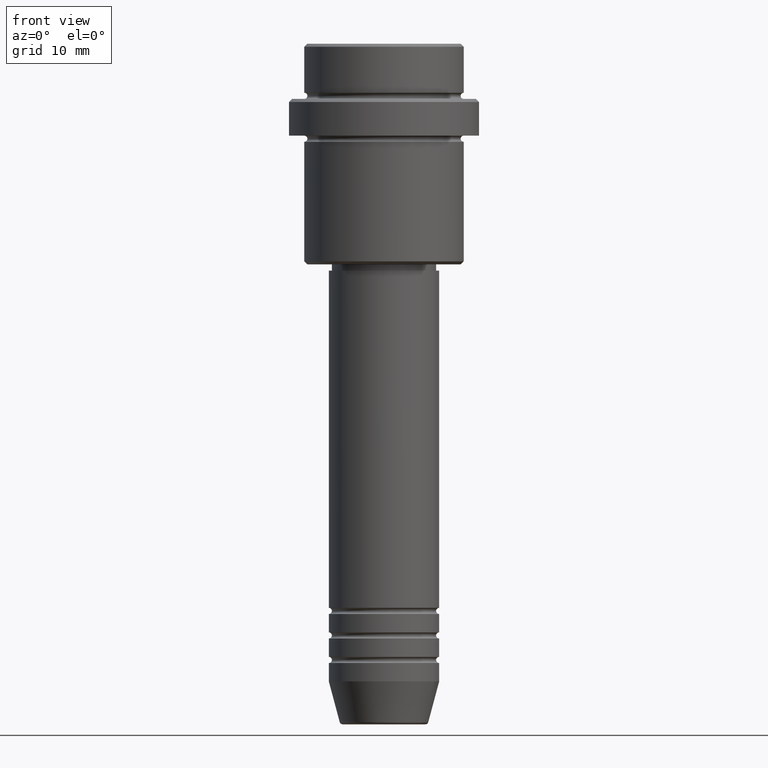
[diagram: clean part render]
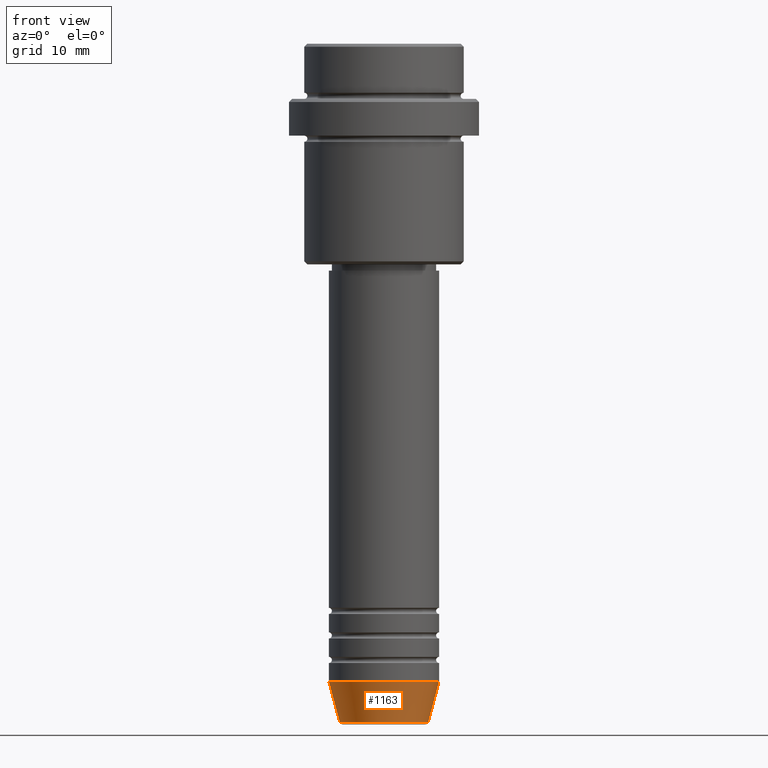
[diagram: same view with one face highlighted and labeled with its STEP entity id]
A machine part, front view. The second image highlights one B-rep face of the part: STEP entity #1163.
In plain terms, the highlighted conical surface has half-angle 15 deg.
Its self-contained STEP definition (entity closure, byte-faithful):
#52 = DIRECTION ( 'NONE',  ( 0.2588190451025213501, 0.000000000000000000, 0.9659258262890680902 ) ) ;
#76 = EDGE_CURVE ( 'NONE', #1002, #1024, #104, .T. ) ;
#78 = CARTESIAN_POINT ( 'NONE',  ( -9.000000000000000000, 1.102182119232617714E-15, -104.0000000000000000 ) ) ;
#104 = CIRCLE ( 'NONE', #1368, 7.223655072137193045 ) ;
#130 = FACE_OUTER_BOUND ( 'NONE', #228, .T. ) ;
#142 = DIRECTION ( 'NONE',  ( 1.000000000000000000, 0.000000000000000000, 0.000000000000000000 ) ) ;
#228 = EDGE_LOOP ( 'NONE', ( #1334, #1161, #1206, #266 ) ) ;
#242 = DIRECTION ( 'NONE',  ( -0.000000000000000000, -0.000000000000000000, 1.000000000000000000 ) ) ;
#266 = ORIENTED_EDGE ( 'NONE', *, *, #754, .F. ) ;
#271 = CIRCLE ( 'NONE', #838, 9.000000000000000000 ) ;
#290 = VERTEX_POINT ( 'NONE', #1107 ) ;
#322 = CARTESIAN_POINT ( 'NONE',  ( -7.223655072137193045, 9.934123627281767082E-16, -110.6294095225512422 ) ) ;
#373 = EDGE_CURVE ( 'NONE', #1002, #550, #835, .T. ) ;
#385 = DIRECTION ( 'NONE',  ( -0.000000000000000000, -0.000000000000000000, 1.000000000000000000 ) ) ;
#391 = CARTESIAN_POINT ( 'NONE',  ( -9.000000000000000000, 1.102182119232617714E-15, -104.0000000000000000 ) ) ;
#405 = CONICAL_SURFACE ( 'NONE', #447, 9.000000000000000000, 0.2617993877991500740 ) ;
#447 = AXIS2_PLACEMENT_3D ( 'NONE', #985, #680, #142 ) ;
#550 = VERTEX_POINT ( 'NONE', #78 ) ;
#574 = CARTESIAN_POINT ( 'NONE',  ( 0.000000000000000000, 0.000000000000000000, -104.0000000000000000 ) ) ;
#585 = DIRECTION ( 'NONE',  ( 1.000000000000000000, 0.000000000000000000, 0.000000000000000000 ) ) ;
#680 = DIRECTION ( 'NONE',  ( -0.000000000000000000, -0.000000000000000000, 1.000000000000000000 ) ) ;
#694 = DIRECTION ( 'NONE',  ( -0.2588190451025213501, 3.169619151431772337E-17, 0.9659258262890680902 ) ) ;
#754 = EDGE_CURVE ( 'NONE', #550, #290, #271, .T. ) ;
#835 = LINE ( 'NONE', #391, #1100 ) ;
#838 = AXIS2_PLACEMENT_3D ( 'NONE', #574, #242, #974 ) ;
#846 = EDGE_CURVE ( 'NONE', #1024, #290, #1371, .T. ) ;
#899 = CARTESIAN_POINT ( 'NONE',  ( 9.000000000000000000, 0.000000000000000000, -104.0000000000000000 ) ) ;
#974 = DIRECTION ( 'NONE',  ( 1.000000000000000000, 0.000000000000000000, 0.000000000000000000 ) ) ;
#985 = CARTESIAN_POINT ( 'NONE',  ( 0.000000000000000000, 0.000000000000000000, -104.0000000000000000 ) ) ;
#1002 = VERTEX_POINT ( 'NONE', #322 ) ;
#1024 = VERTEX_POINT ( 'NONE', #1321 ) ;
#1100 = VECTOR ( 'NONE', #694, 1000.000000000000000 ) ;
#1107 = CARTESIAN_POINT ( 'NONE',  ( 9.000000000000000000, 0.000000000000000000, -104.0000000000000000 ) ) ;
#1161 = ORIENTED_EDGE ( 'NONE', *, *, #76, .T. ) ;
#1163 = ADVANCED_FACE ( 'NONE', ( #130 ), #405, .T. ) ;
#1206 = ORIENTED_EDGE ( 'NONE', *, *, #846, .T. ) ;
#1254 = CARTESIAN_POINT ( 'NONE',  ( 0.000000000000000000, 0.000000000000000000, -110.6294095225512422 ) ) ;
#1321 = CARTESIAN_POINT ( 'NONE',  ( 7.223655072137193045, 0.000000000000000000, -110.6294095225512422 ) ) ;
#1334 = ORIENTED_EDGE ( 'NONE', *, *, #373, .F. ) ;
#1368 = AXIS2_PLACEMENT_3D ( 'NONE', #1254, #385, #585 ) ;
#1371 = LINE ( 'NONE', #899, #1373 ) ;
#1373 = VECTOR ( 'NONE', #52, 1000.000000000000000 ) ;